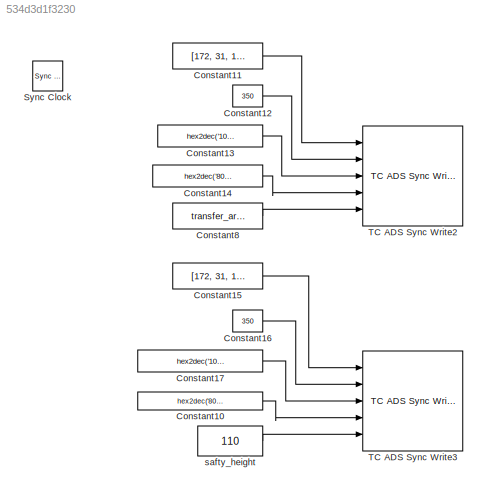
MODEL slx_534d3d1f3230
KIND model
CONFIG AbsTol = auto
CONFIG EnableMultiTasking = off
CONFIG FixedStep = auto
CONFIG MaxStep = auto
CONFIG MinStep = auto
CONFIG RelTol = 1e-3
CONFIG SampleTimeConstraint = Unconstrained
CONFIG Solver = FixedStepAuto
CONFIG SolverName = FixedStepAuto
CONFIG StartTime = 0.0
CONFIG StopTime = 0.0001
BLOCK [Constant] Constant10
  OutDataTypeStr = uint32
  Value = hex2dec('80000100')
BLOCK [Constant] Constant11
  OutDataTypeStr = uint8
  Value = [172, 31, 1, 150, 1, 1]
BLOCK [Constant] Constant12
  OutDataTypeStr = uint16
  Value = 350
BLOCK [Constant] Constant13
  OutDataTypeStr = uint32
  Value = hex2dec('1010020')
BLOCK [Constant] Constant14
  OutDataTypeStr = uint32
  Value = hex2dec('80000010')
BLOCK [Constant] Constant15
  OutDataTypeStr = uint8
  Value = [172, 31, 1, 150, 1, 1]
BLOCK [Constant] Constant16
  OutDataTypeStr = uint16
  Value = 350
BLOCK [Constant] Constant17
  OutDataTypeStr = uint32
  Value = hex2dec('1010020')
BLOCK [Constant] Constant8
  Value = transfer_array
BLOCK [Reference] Sync Clock  REF=TcAdsLib/Utilities/Sync Clock
  Ports = []
  SourceBlock = TcAdsLib/Utilities/Sync Clock
  SourceProductName = Beckhoff TwinCAT ADS Interface
BLOCK [Reference] TC ADS Sync Write2  REF=TcAdsLib/Synchronous/TC ADS Sync Write
  Ports = [5, 2]
  SourceBlock = TcAdsLib/Synchronous/TC ADS Sync Write
  SourceProductName = Beckhoff TwinCAT ADS Interface
  SourceType = TC ADS Sync Write
BLOCK [Reference] TC ADS Sync Write3  REF=TcAdsLib/Synchronous/TC ADS Sync Write
  Ports = [5, 2]
  SourceBlock = TcAdsLib/Synchronous/TC ADS Sync Write
  SourceProductName = Beckhoff TwinCAT ADS Interface
  SourceType = TC ADS Sync Write
BLOCK [Constant] safty_height
  Value = 110
LINE Constant10:1 -> TC ADS Sync Write3:4
LINE Constant11:1 -> TC ADS Sync Write2:1
LINE Constant12:1 -> TC ADS Sync Write2:2
LINE Constant13:1 -> TC ADS Sync Write2:3
LINE Constant14:1 -> TC ADS Sync Write2:4
LINE Constant15:1 -> TC ADS Sync Write3:1
LINE Constant16:1 -> TC ADS Sync Write3:2
LINE Constant17:1 -> TC ADS Sync Write3:3
LINE Constant8:1 -> TC ADS Sync Write2:5
LINE safty_height:1 -> TC ADS Sync Write3:5
